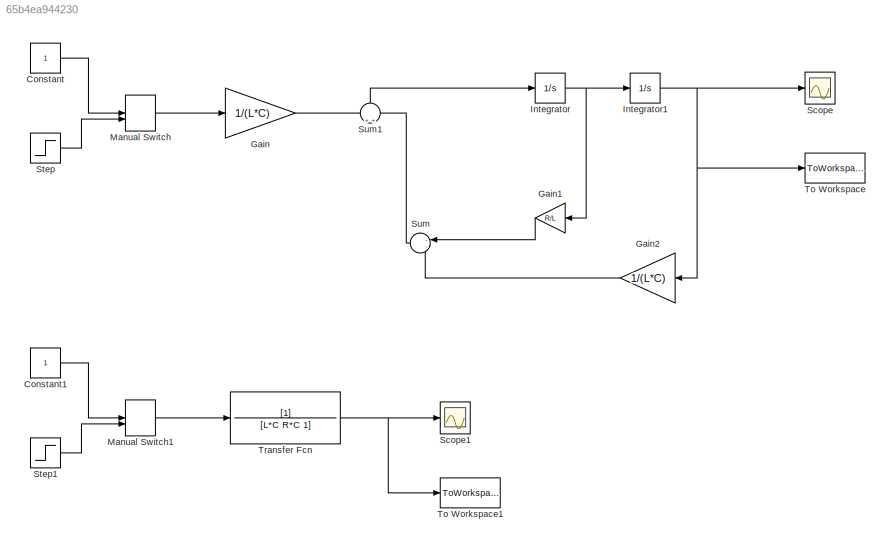
MODEL slx_65b4ea944230
KIND model
BLOCK [Constant] Constant
BLOCK [Constant] Constant1
BLOCK [Gain] Gain
  Gain = 1/(L*C)
  OutDataTypeStr = Inherit: Inherit via internal rule
  ParamDataTypeStr = Inherit: Inherit via internal rule
  SaturateOnIntegerOverflow = off
BLOCK [Gain] Gain1
  Gain = R/L
  OutDataTypeStr = Inherit: Inherit via internal rule
  ParamDataTypeStr = Inherit: Inherit via internal rule
  SaturateOnIntegerOverflow = off
BLOCK [Gain] Gain2
  Gain = 1/(L*C)
  OutDataTypeStr = Inherit: Inherit via internal rule
  ParamDataTypeStr = Inherit: Inherit via internal rule
  SaturateOnIntegerOverflow = off
BLOCK [Integrator] Integrator
  Ports = [1, 1]
BLOCK [Integrator] Integrator1
  Ports = [1, 1]
BLOCK [ManualSwitch] Manual Switch
BLOCK [ManualSwitch] Manual Switch1
BLOCK [Scope] Scope
  DataFormat = StructureWithTime
  Floating = off
  NumInputPorts = 1
  Ports = [1]
  SampleTime = 0
  ShowLegends = off
  ZoomMode = yonly
BLOCK [Scope] Scope1
  DataFormat = StructureWithTime
  Floating = off
  NumInputPorts = 1
  Ports = [1]
  SampleTime = 0
  SaveName = ScopeData1
  ShowLegends = off
  ZoomMode = yonly
BLOCK [Step] Step
  SampleTime = 0
BLOCK [Step] Step1
  SampleTime = 0
BLOCK [Sum] Sum
  IconShape = round
  InputSameDT = off
  Inputs = --
  OutDataTypeStr = Inherit: Inherit via internal rule
  Ports = [2, 1]
  SaturateOnIntegerOverflow = off
BLOCK [Sum] Sum1
  IconShape = round
  InputSameDT = off
  OutDataTypeStr = Inherit: Inherit via internal rule
  Ports = [2, 1]
  SaturateOnIntegerOverflow = off
BLOCK [ToWorkspace] To Workspace
  MaxDataPoints = inf
  Ports = [1]
  SampleTime = -1
  VariableName = simu
BLOCK [ToWorkspace] To Workspace1
  MaxDataPoints = inf
  Ports = [1]
  SampleTime = -1
  VariableName = simu2
BLOCK [TransferFcn] Transfer Fcn
  Denominator = [L*C R*C 1]
LINE Constant1:1 -> Manual Switch1:1
LINE Constant:1 -> Manual Switch:1
LINE Gain1:1 -> Sum:1
LINE Gain2:1 -> Sum:2
LINE Gain:1 -> Sum1:1
NET Integrator1:1 -> Gain2:1, Scope:1, To Workspace:1
NET Integrator:1 -> Gain1:1, Integrator1:1
LINE Manual Switch1:1 -> Transfer Fcn:1
LINE Manual Switch:1 -> Gain:1
LINE Step1:1 -> Manual Switch1:2
LINE Step:1 -> Manual Switch:2
LINE Sum1:1 -> Integrator:1
LINE Sum:1 -> Sum1:2
NET Transfer Fcn:1 -> Scope1:1, To Workspace1:1
note: NET lines group one-source signal fan-out (src -> all destinations, sorted); 1:1 wires keep LINE
